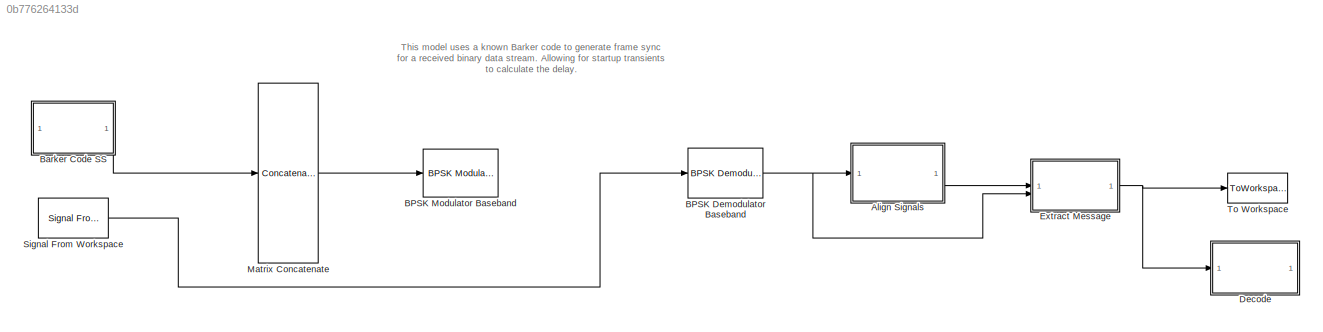
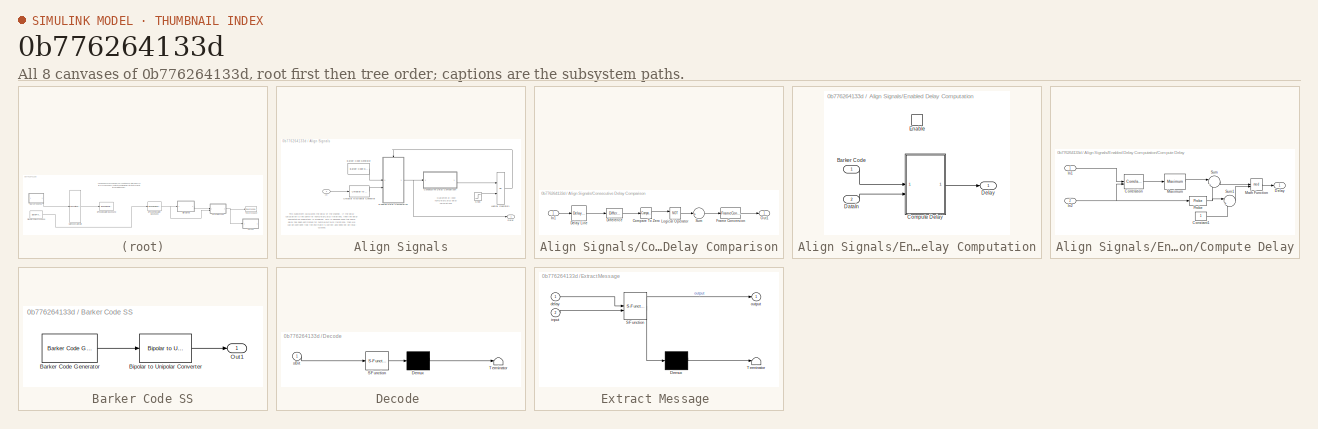
[diagram: thumbnail index - all 8 canvases of the model, root first then tree order]
MODEL mdl_0b776264133d
KIND model
CONFIG AbsTol = auto
CONFIG EnableMultiTasking = off
CONFIG FixedStep = auto
CONFIG InitFcn = frameLength = 200;\nnumDelayCalcs = 3;
CONFIG MaxStep = auto
CONFIG MinStep = auto
CONFIG PreLoadFcn = load sbit
CONFIG RelTol = 1e-3
CONFIG SampleTimeConstraint = Unconstrained
CONFIG SolverName = VariableStepDiscrete
CONFIG StartTime = 0.0
CONFIG StopTime = 0.5
BLOCK [SubSystem] Align Signals
BLOCK [Reference] Align Signals/Barker Code Generator  REF=commseqgen3/Barker Code
Generator
  SourceBlock = commseqgen3/Barker Code\nGenerator
  SourceType = Barker Code Generator
BLOCK [SubSystem] Align Signals/Consecutive Delay Comparison
BLOCK [Reference] Align Signals/Consecutive Delay Comparison/Compare To Zero  REF=simulink/Logic and Bit
Operations/Compare
To Zero
  SourceBlock = simulink/Logic and Bit\nOperations/Compare\nTo Zero
  SourceType = Compare To Zero
BLOCK [Reference] Align Signals/Consecutive Delay Comparison/Delay Line  REF=dspbuff3/Delay Line
  SourceBlock = dspbuff3/Delay Line
  SourceType = Delay Line
  UserDataPersistent = on
BLOCK [Reference] Align Signals/Consecutive Delay Comparison/Difference  REF=dspmathops/Difference
  SourceBlock = dspmathops/Difference
  SourceType = Difference
  UserDataPersistent = on
BLOCK [FrameConversion] Align Signals/Consecutive Delay Comparison/Frame Conversion
  OutFrame = Sample-based
BLOCK [Inport] Align Signals/Consecutive Delay Comparison/In1
BLOCK [Logic] Align Signals/Consecutive Delay Comparison/Logical Operator
  AllPortsSameDT = off
  Operator = NOT
  OutDataTypeStr = boolean
BLOCK [Outport] Align Signals/Consecutive Delay Comparison/Out1
BLOCK [Sum] Align Signals/Consecutive Delay Comparison/Sum
  Inputs = +
BLOCK [Outport] Align Signals/Delay
BLOCK [SubSystem] Align Signals/Enabled Delay Computation
  TreatAsAtomicUnit = on
BLOCK [Inport] Align Signals/Enabled Delay Computation/Barker Code
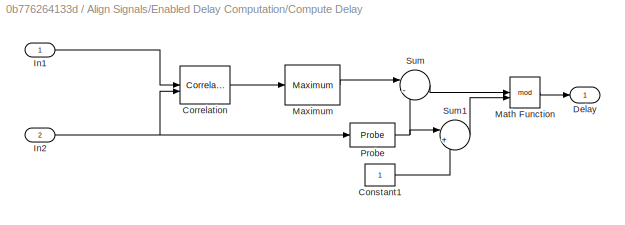
BLOCK [SubSystem] Align Signals/Enabled Delay Computation/Compute Delay
BLOCK [Constant] Align Signals/Enabled Delay Computation/Compute Delay/Constant1
  FramePeriod = 2
  OutDataTypeStr = Inherit: Inherit via back propagation
  VectorParams1D = off
BLOCK [Reference] Align Signals/Enabled Delay Computation/Compute Delay/Correlation  REF=dspstat3/Correlation
  SourceBlock = dspstat3/Correlation
  SourceType = Correlation
BLOCK [Outport] Align Signals/Enabled Delay Computation/Compute Delay/Delay
BLOCK [Inport] Align Signals/Enabled Delay Computation/Compute Delay/In1
BLOCK [Inport] Align Signals/Enabled Delay Computation/Compute Delay/In2
  Port = 2
BLOCK [Math] Align Signals/Enabled Delay Computation/Compute Delay/Math Function
  Operator = mod
  SignedPower = on
BLOCK [Reference] Align Signals/Enabled Delay Computation/Compute Delay/Maximum  REF=dspstat3/Maximum
  SourceBlock = dspstat3/Maximum
  SourceType = Maximum
  UserDataPersistent = on
BLOCK [Probe] Align Signals/Enabled Delay Computation/Compute Delay/Probe
  ProbeComplexSignal = off
  ProbeSampleTime = off
BLOCK [Sum] Align Signals/Enabled Delay Computation/Compute Delay/Sum
  InputSameDT = on
  Inputs = |-+
  OutDataTypeStr = Inherit: Same as first input
  SaturateOnIntegerOverflow = on
BLOCK [Sum] Align Signals/Enabled Delay Computation/Compute Delay/Sum1
  InputSameDT = on
  Inputs = |+-
  OutDataTypeStr = Inherit: Same as first input
  SaturateOnIntegerOverflow = on
BLOCK [Inport] Align Signals/Enabled Delay Computation/DataIn
  Port = 2
BLOCK [Outport] Align Signals/Enabled Delay Computation/Delay
BLOCK [EnablePort] Align Signals/Enabled Delay Computation/Enable
BLOCK [Inport] Align Signals/In
BLOCK [Logic] Align Signals/Logical Operator1
  AllPortsSameDT = off
  Operator = OR
  OutDataTypeStr = boolean
BLOCK [Step] Align Signals/Step
  After = 0
  Before = 1
  SampleTime = 1
  Time = numDelayCalcs-1
BLOCK [Reference] Align Signals/Unipolar to Bipolar Converter  REF=commutil2/Unipolar to
Bipolar
Converter
  SourceBlock = commutil2/Unipolar to\nBipolar\nConverter
  SourceType = Unipolar to Bipolar Converter
BLOCK [Reference] BPSK Demodulator Baseband  REF=commdigbbndpm3/BPSK
Demodulator
Baseband
  SourceBlock = commdigbbndpm3/BPSK\nDemodulator\nBaseband
  SourceType = BPSK Demodulator Baseband
BLOCK [Reference] BPSK Modulator Baseband  REF=commdigbbndpm3/BPSK
Modulator
Baseband
  SourceBlock = commdigbbndpm3/BPSK\nModulator\nBaseband
  SourceType = BPSK Modulator Baseband
BLOCK [SubSystem] Barker Code SS
BLOCK [Reference] Barker Code SS/Barker Code Generator  REF=commseqgen3/Barker Code
Generator
  SourceBlock = commseqgen3/Barker Code\nGenerator
  SourceType = Barker Code Generator
BLOCK [Reference] Barker Code SS/Bipolar to Unipolar Converter  REF=commutil2/Bipolar to
Unipolar
Converter
  SourceBlock = commutil2/Bipolar to\nUnipolar\nConverter
  SourceType = Bipolar to Unipolar Converter
BLOCK [Outport] Barker Code SS/Out1
BLOCK [SubSystem] Decode 
  ErrorFcn = Stateflow.Translate.translate
  PermitHierarchicalResolution = ExplicitOnly
  SFBlockType = MATLAB Function
  TreatAsAtomicUnit = on
BLOCK [Demux] Decode / Demux 
  Outputs = 1
BLOCK [S-Function] Decode / SFunction 
  EnableBusSupport = on
  FunctionName = sf_sfun
  PortCounts = [1 1]
  SFcnIsStateOwnerBlock = off
  SFunctionDeploymentMode = off
  Tag = Stateflow S-Function 1
BLOCK [Terminator] Decode / Terminator 
BLOCK [Inport] Decode /sBit
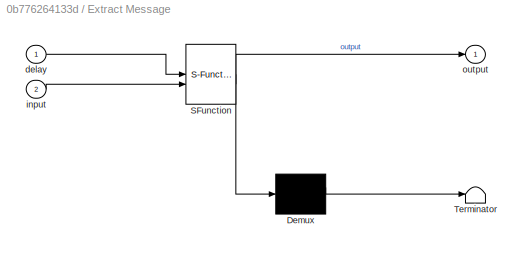
BLOCK [SubSystem] Extract Message 
  ErrorFcn = Stateflow.Translate.translate
  PermitHierarchicalResolution = ExplicitOnly
  SFBlockType = MATLAB Function
  TreatAsAtomicUnit = on
BLOCK [Demux] Extract Message / Demux 
  Outputs = 1
BLOCK [S-Function] Extract Message / SFunction 
  EnableBusSupport = on
  FunctionName = sf_sfun
  PortCounts = [2 2]
  SFcnIsStateOwnerBlock = off
  SFunctionDeploymentMode = off
  Tag = Stateflow S-Function 2
BLOCK [Terminator] Extract Message / Terminator 
BLOCK [Inport] Extract Message /delay
BLOCK [Inport] Extract Message /input
  Port = 2
BLOCK [Outport] Extract Message /output
BLOCK [Concatenate] Matrix Concatenate
  Mode = Multidimensional array
BLOCK [Reference] Signal From Workspace  REF=dspsrcs4/Signal From
Workspace
  SourceBlock = dspsrcs4/Signal From\nWorkspace
  SourceType = Signal From Workspace
BLOCK [ToWorkspace] To Workspace
  MaxDataPoints = inf
  SampleTime = -1
  VariableName = received
ANNOTATION (root): This model uses a known Barker code to generate frame sync for a received binary data stream. Allowing for startup transients to calculate the delay.
ANNOTATION Align Signals: Guarantee at least numDelayCalcs delay calculations
ANNOTATION Align Signals: This subsystem calculates the delay of the channel. If the delay calculation is the same for numDelayCalcs iterations, then the delay computation subsystem is disabled. This is because once the same delay has been estimated for numDelayCalcs iterations, then we can be confident that the estimate is correct and need not be recal- culated.
LINE Align Signals/Barker Code Generator:1 -> Align Signals/Enabled Delay Computation:1
LINE Align Signals/Consecutive Delay Comparison/Compare To Zero:1 -> Align Signals/Consecutive Delay Comparison/Logical Operator:1
LINE Align Signals/Consecutive Delay Comparison/Delay Line:1 -> Align Signals/Consecutive Delay Comparison/Difference:1
LINE Align Signals/Consecutive Delay Comparison/Difference:1 -> Align Signals/Consecutive Delay Comparison/Compare To Zero:1
LINE Align Signals/Consecutive Delay Comparison/Frame Conversion:1 -> Align Signals/Consecutive Delay Comparison/Out1:1
LINE Align Signals/Consecutive Delay Comparison/In1:1 -> Align Signals/Consecutive Delay Comparison/Delay Line:1
LINE Align Signals/Consecutive Delay Comparison/Logical Operator:1 -> Align Signals/Consecutive Delay Comparison/Sum:1
LINE Align Signals/Consecutive Delay Comparison/Sum:1 -> Align Signals/Consecutive Delay Comparison/Frame Conversion:1
LINE Align Signals/Consecutive Delay Comparison:1 -> Align Signals/Logical Operator1:1
LINE Align Signals/Enabled Delay Computation/Barker Code:1 -> Align Signals/Enabled Delay Computation/Compute Delay:1
LINE Align Signals/Enabled Delay Computation/Compute Delay/Constant1:1 -> Align Signals/Enabled Delay Computation/Compute Delay/Sum1:2
LINE Align Signals/Enabled Delay Computation/Compute Delay/Correlation:1 -> Align Signals/Enabled Delay Computation/Compute Delay/Maximum:1
LINE Align Signals/Enabled Delay Computation/Compute Delay/In1:1 -> Align Signals/Enabled Delay Computation/Compute Delay/Correlation:1
NET Align Signals/Enabled Delay Computation/Compute Delay/In2:1 -> Align Signals/Enabled Delay Computation/Compute Delay/Correlation:2, Align Signals/Enabled Delay Computation/Compute Delay/Probe:1
LINE Align Signals/Enabled Delay Computation/Compute Delay/Math Function:1 -> Align Signals/Enabled Delay Computation/Compute Delay/Delay:1
LINE Align Signals/Enabled Delay Computation/Compute Delay/Maximum:1 -> Align Signals/Enabled Delay Computation/Compute Delay/Sum:1
NET Align Signals/Enabled Delay Computation/Compute Delay/Probe:1 -> Align Signals/Enabled Delay Computation/Compute Delay/Sum1:1, Align Signals/Enabled Delay Computation/Compute Delay/Sum:2
LINE Align Signals/Enabled Delay Computation/Compute Delay/Sum1:1 -> Align Signals/Enabled Delay Computation/Compute Delay/Math Function:2
LINE Align Signals/Enabled Delay Computation/Compute Delay/Sum:1 -> Align Signals/Enabled Delay Computation/Compute Delay/Math Function:1
LINE Align Signals/Enabled Delay Computation/Compute Delay:1 -> Align Signals/Enabled Delay Computation/Delay:1
LINE Align Signals/Enabled Delay Computation/DataIn:1 -> Align Signals/Enabled Delay Computation/Compute Delay:2
NET Align Signals/Enabled Delay Computation:1 -> Align Signals/Consecutive Delay Comparison:1, Align Signals/Delay:1
LINE Align Signals/In:1 -> Align Signals/Unipolar to Bipolar Converter:1
LINE Align Signals/Logical Operator1:1 -> Align Signals/Enabled Delay Computation:enable
LINE Align Signals/Step:1 -> Align Signals/Logical Operator1:2
LINE Align Signals/Unipolar to Bipolar Converter:1 -> Align Signals/Enabled Delay Computation:2
LINE Align Signals:1 -> Extract Message :1
NET BPSK Demodulator Baseband:1 -> Align Signals:1, Extract Message :2
LINE Barker Code SS/Barker Code Generator:1 -> Barker Code SS/Bipolar to Unipolar Converter:1
LINE Barker Code SS/Bipolar to Unipolar Converter:1 -> Barker Code SS/Out1:1
LINE Barker Code SS:1 -> Matrix Concatenate:1
NET Extract Message :1 -> Decode :1, To Workspace:1
LINE Matrix Concatenate:1 -> BPSK Modulator Baseband:1
LINE Signal From Workspace:1 -> BPSK Demodulator Baseband:1
note: NET lines group one-source signal fan-out (src -> all destinations, sorted); 1:1 wires keep LINE
CHART Extract Message
 states=1 transitions=1
  STATE_LABEL 'eML_blk_kernel()'
  STATE_LABEL 'SCRIPT:\nfunction output = fcn(delay,input)\n%#codegen\n\noutput = input(delay+7+1:delay+7+112);'
CHART Decode
 states=1 transitions=1
  STATE_LABEL 'eML_blk_kernel()'
  STATE_LABEL "SCRIPT:\nfunction  fcn(sBit)\n\n%Convert bit stream back to integers\nsBit = reshape(sBit, 7, 16);\nsBit = sBit';\nsIntEst = bi2de(sBit, 'left-msb');\n\n%Convert integers back to characters\nsEst = (char(sIntEst))'\nend\n\n"
CHART  states=0 transitions=0
CHART  states=0 transitions=0
